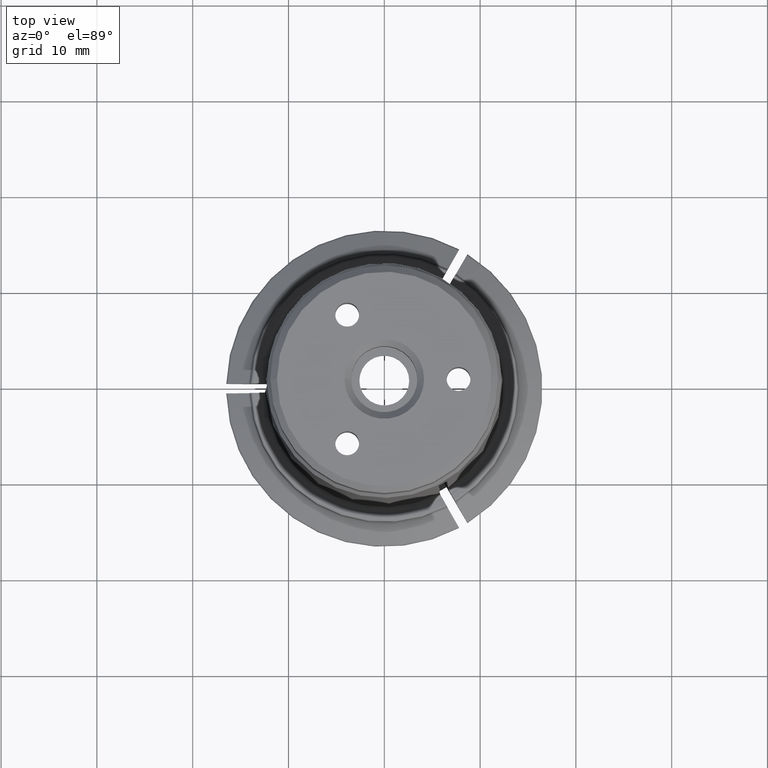
[diagram: clean part render]
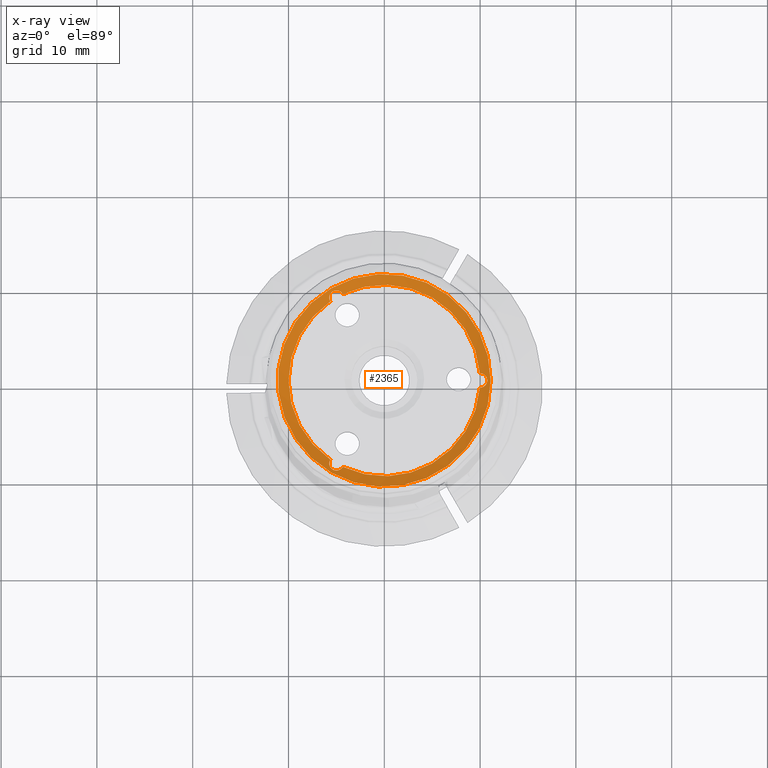
[diagram: x-ray — body ghosted, one internal face saturated and labeled with its STEP entity id]
A machine part, top view, then the same camera in x-ray: the body is ghosted and one INTERNAL B-rep face — a face not visible from any outside direction — is saturated and labeled: STEP entity #2365.
In plain terms, the highlighted conical surface has half-angle 60 deg.
Its self-contained STEP definition (entity closure, byte-faithful):
#248=CONICAL_SURFACE('',#2570,11.1,1.0471975511966);
#316=CIRCLE('',#2509,10.);
#336=CIRCLE('',#2545,10.);
#337=CIRCLE('',#2549,10.);
#351=CIRCLE('',#2571,11.1);
#677=ORIENTED_EDGE('',*,*,#1056,.F.);
#678=ORIENTED_EDGE('',*,*,#977,.F.);
#679=ORIENTED_EDGE('',*,*,#1057,.F.);
#680=ORIENTED_EDGE('',*,*,#1024,.F.);
#681=ORIENTED_EDGE('',*,*,#1058,.F.);
#682=ORIENTED_EDGE('',*,*,#1030,.F.);
#683=ORIENTED_EDGE('',*,*,#1059,.T.);
#977=EDGE_CURVE('',#1193,#1190,#316,.T.);
#1024=EDGE_CURVE('',#1227,#1224,#336,.T.);
#1030=EDGE_CURVE('',#1232,#1234,#337,.T.);
#1056=EDGE_CURVE('',#1190,#1232,#1313,.T.);
#1057=EDGE_CURVE('',#1224,#1193,#1314,.T.);
#1058=EDGE_CURVE('',#1234,#1227,#1315,.T.);
#1059=EDGE_CURVE('',#1257,#1257,#351,.T.);
#1190=VERTEX_POINT('',#3463);
#1193=VERTEX_POINT('',#3468);
#1224=VERTEX_POINT('',#3596);
#1227=VERTEX_POINT('',#3601);
#1232=VERTEX_POINT('',#3613);
#1234=VERTEX_POINT('',#3616);
#1257=VERTEX_POINT('',#3703);
#1313=B_SPLINE_CURVE_WITH_KNOTS('',3,(#3681,#3682,#3683,#3684,#3685,#3686,
#3687),.UNSPECIFIED.,.F.,.F.,(4,1,1,1,4),(3.5762240613455E-18,0.000640929157212897,
0.00128185831442579,0.00192278747163869,0.00256371662885158),
 .UNSPECIFIED.);
#1314=B_SPLINE_CURVE_WITH_KNOTS('',3,(#3688,#3689,#3690,#3691,#3692,#3693,
#3694),.UNSPECIFIED.,.F.,.F.,(4,1,1,1,4),(0.,0.0006409291572129,0.0012818583144258,
0.0019227874716387,0.0025637166288516),.UNSPECIFIED.);
#1315=B_SPLINE_CURVE_WITH_KNOTS('',3,(#3695,#3696,#3697,#3698,#3699,#3700,
#3701),.UNSPECIFIED.,.F.,.F.,(4,1,1,1,4),(1.74822347316868E-18,0.0006409291572129,
0.0012818583144258,0.0019227874716387,0.00256371662885159),
 .UNSPECIFIED.);
#1427=EDGE_LOOP('',(#677,#678,#679,#680,#681,#682));
#1428=EDGE_LOOP('',(#683));
#1565=FACE_BOUND('',#1427,.T.);
#1566=FACE_BOUND('',#1428,.T.);
#2365=ADVANCED_FACE('',(#1565,#1566),#248,.F.);
#2509=AXIS2_PLACEMENT_3D('',#3469,#2875,#2876);
#2545=AXIS2_PLACEMENT_3D('',#3602,#2960,#2961);
#2549=AXIS2_PLACEMENT_3D('',#3615,#2971,#2972);
#2570=AXIS2_PLACEMENT_3D('',#3680,#3022,#3023);
#2571=AXIS2_PLACEMENT_3D('',#3702,#3024,#3025);
#2875=DIRECTION('',(0.,0.,1.));
#2876=DIRECTION('',(1.,0.,0.));
#2960=DIRECTION('',(0.,0.,1.));
#2961=DIRECTION('',(1.,0.,0.));
#2971=DIRECTION('',(0.,0.,1.));
#2972=DIRECTION('',(1.,0.,0.));
#3022=DIRECTION('',(0.,0.,1.));
#3023=DIRECTION('',(1.,0.,0.));
#3024=DIRECTION('',(0.,0.,1.));
#3025=DIRECTION('',(1.,0.,0.));
#3463=CARTESIAN_POINT('',(-5.63499969908515,-8.26116083800033,50.6689893600917));
#3468=CARTESIAN_POINT('',(-5.63499969908515,8.26116083800033,50.6689893600917));
#3469=CARTESIAN_POINT('',(0.,0.,50.6689893600917));
#3596=CARTESIAN_POINT('',(-4.33687530091485,9.01063330872557,50.6689893600917));
#3601=CARTESIAN_POINT('',(9.971875,0.749472470725243,50.6689893600917));
#3602=CARTESIAN_POINT('',(0.,0.,50.6689893600917));
#3613=CARTESIAN_POINT('',(-4.33687530091485,-9.01063330872557,50.6689893600917));
#3615=CARTESIAN_POINT('',(0.,0.,50.6689893600917));
#3616=CARTESIAN_POINT('',(9.971875,-0.749472470725243,50.6689893600917));
#3680=CARTESIAN_POINT('',(0.,0.,51.3040746562003));
#3681=CARTESIAN_POINT('',(-5.63499969908515,-8.26116083800032,50.6689893600917));
#3682=CARTESIAN_POINT('',(-5.73538441076901,-8.42088358380733,50.7778293031518));
#3683=CARTESIAN_POINT('',(-5.82128800564298,-8.81122790162162,50.9907094805325));
#3684=CARTESIAN_POINT('',(-5.43036110794452,-9.39644761596415,51.1567922607667));
#3685=CARTESIAN_POINT('',(-4.72584886060548,-9.45083303441383,50.9941063009514));
#3686=CARTESIAN_POINT('',(-4.42518482227317,-9.17776712526054,50.7780490313233));
#3687=CARTESIAN_POINT('',(-4.33687530091482,-9.01063330872558,50.6689893600917));
#3688=CARTESIAN_POINT('',(-4.33687530091485,9.01063330872556,50.6689893600917));
#3689=CARTESIAN_POINT('',(-4.42500690050399,9.17743039209887,50.7778293031518));
#3690=CARTESIAN_POINT('',(-4.72010319851708,9.44699724644328,50.9907094805325));
#3691=CARTESIAN_POINT('',(-5.42238178678243,9.40105447918506,51.1567922607667));
#3692=CARTESIAN_POINT('',(-5.82173706442481,8.81812168493702,50.9941063009514));
#3693=CARTESIAN_POINT('',(-5.73558706935673,8.42120603516017,50.7780490313233));
#3694=CARTESIAN_POINT('',(-5.63499969908517,8.26116083800031,50.6689893600917));
#3695=CARTESIAN_POINT('',(9.97187499999999,-0.749472470725243,50.6689893600917));
#3696=CARTESIAN_POINT('',(10.160391311273,-0.756546808291536,50.7778293031518));
#3697=CARTESIAN_POINT('',(10.5413912041601,-0.635769344821662,50.9907094805325));
#3698=CARTESIAN_POINT('',(10.852742894727,-0.00460686322088485,51.1567922607667));
#3699=CARTESIAN_POINT('',(10.5475859250303,0.632711349476824,50.9941063009514));
#3700=CARTESIAN_POINT('',(10.1607718916299,0.756561090100384,50.7780490313233));
#3701=CARTESIAN_POINT('',(9.97187499999999,0.749472470725277,50.6689893600917));
#3702=CARTESIAN_POINT('',(0.,0.,51.3040746562003));
#3703=CARTESIAN_POINT('',(11.1,0.,51.3040746562003));